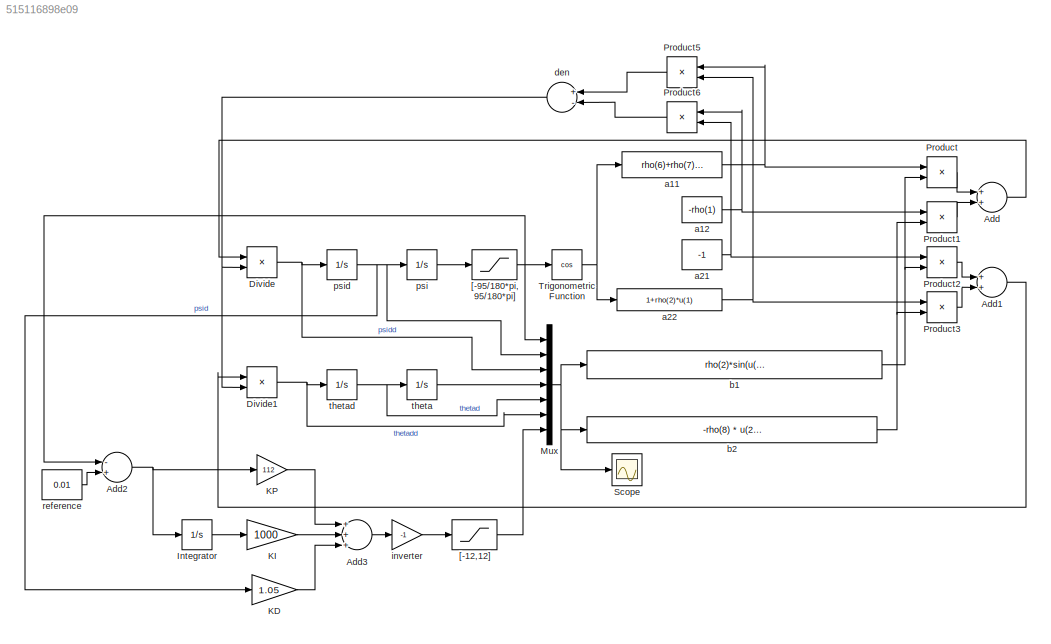
MODEL slx_515116898e09
KIND model
CONFIG AbsTol = auto
CONFIG EnableMultiTasking = off
CONFIG FixedStep = 0.05
CONFIG MaxStep = auto
CONFIG MinStep = auto
CONFIG RelTol = 1e-3
CONFIG SampleTimeConstraint = Unconstrained
CONFIG Solver = FixedStepAuto
CONFIG SolverName = FixedStepAuto
CONFIG StartTime = 0.0
CONFIG StopTime = 0.5
BLOCK [Sum] Add
  InputSameDT = off
  OutDataTypeStr = Inherit: Inherit via internal rule
  Ports = [2, 1]
  SaturateOnIntegerOverflow = off
BLOCK [Sum] Add1
  InputSameDT = off
  OutDataTypeStr = Inherit: Inherit via internal rule
  Ports = [2, 1]
  SaturateOnIntegerOverflow = off
BLOCK [Sum] Add2
  InputSameDT = off
  Inputs = -+
  OutDataTypeStr = Inherit: Inherit via internal rule
  Ports = [2, 1]
  SaturateOnIntegerOverflow = off
BLOCK [Sum] Add3
  InputSameDT = off
  Inputs = +++
  OutDataTypeStr = Inherit: Inherit via internal rule
  Ports = [3, 1]
  SaturateOnIntegerOverflow = off
BLOCK [Product] Divide
  InputSameDT = off
  Inputs = */
  OutDataTypeStr = Inherit: Inherit via internal rule
  Ports = [2, 1]
  RndMeth = Floor
  SaturateOnIntegerOverflow = off
BLOCK [Product] Divide1
  InputSameDT = off
  Inputs = */
  OutDataTypeStr = Inherit: Inherit via internal rule
  Ports = [2, 1]
  RndMeth = Floor
  SaturateOnIntegerOverflow = off
BLOCK [Integrator] Integrator
  Ports = [1, 1]
BLOCK [Gain] KD
  Gain = 1.05
  OutDataTypeStr = Inherit: Inherit via internal rule
  ParamDataTypeStr = Inherit: Inherit via internal rule
  SaturateOnIntegerOverflow = off
BLOCK [Gain] KI
  Gain = 1000
  OutDataTypeStr = Inherit: Inherit via internal rule
  ParamDataTypeStr = Inherit: Inherit via internal rule
  SaturateOnIntegerOverflow = off
BLOCK [Gain] KP
  Gain = 112
  OutDataTypeStr = Inherit: Inherit via internal rule
  ParamDataTypeStr = Inherit: Inherit via internal rule
  SaturateOnIntegerOverflow = off
BLOCK [Mux] Mux
  DisplayOption = bar
  Inputs = 7
  Ports = [7, 1]
BLOCK [Product] Product
  InputSameDT = off
  OutDataTypeStr = Inherit: Inherit via internal rule
  Ports = [2, 1]
  RndMeth = Floor
  SaturateOnIntegerOverflow = off
BLOCK [Product] Product1
  InputSameDT = off
  OutDataTypeStr = Inherit: Inherit via internal rule
  Ports = [2, 1]
  RndMeth = Floor
  SaturateOnIntegerOverflow = off
BLOCK [Product] Product2
  InputSameDT = off
  OutDataTypeStr = Inherit: Inherit via internal rule
  Ports = [2, 1]
  RndMeth = Floor
  SaturateOnIntegerOverflow = off
BLOCK [Product] Product3
  InputSameDT = off
  OutDataTypeStr = Inherit: Inherit via internal rule
  Ports = [2, 1]
  RndMeth = Floor
  SaturateOnIntegerOverflow = off
BLOCK [Product] Product5
  InputSameDT = off
  OutDataTypeStr = Inherit: Inherit via internal rule
  Ports = [2, 1]
  RndMeth = Floor
  SaturateOnIntegerOverflow = off
BLOCK [Product] Product6
  InputSameDT = off
  OutDataTypeStr = Inherit: Inherit via internal rule
  Ports = [2, 1]
  RndMeth = Floor
  SaturateOnIntegerOverflow = off
BLOCK [Scope] Scope
  Floating = off
  NumInputPorts = 1
  Ports = [1]
  ScopeSpecificationString = Simulink.scopes.TimeScopeBlockCfg('CurrentConfiguration', extmgr.ConfigurationSet(extmgr.Configuration('Core','General UI',true),extmgr.Configuration('Core','Source UI',true),extmgr.Configuration('Sources','WiredSimulink',true),extmgr.Configuration('Visuals','Time Domain',true,'SerializedDisplays',{struct('MinYLimReal','-5.39995','MaxYLimReal','8.28785','YLabelReal','','MinYLimMag','0.00000','MaxY...<+1557ch>
BLOCK [Trigonometry] Trigonometric Function
  Operator = cos
  Ports = [1, 1]
BLOCK [Saturate] [-12,12]
  InputPortMap = u0
  LowerLimit = -12
  Ports = [1, 1]
  UpperLimit = 12
BLOCK [Saturate] [-95//180*pi, 95//180*pi]
  InputPortMap = u0
  LowerLimit = -95/180*pi
  Ports = [1, 1]
  UpperLimit = 95/180*pi
BLOCK [Fcn] a11
  Expr = rho(6)+rho(7)*u(1)
BLOCK [Constant] a12
  Value = -rho(1)
BLOCK [Constant] a21
  Value = -1
BLOCK [Fcn] a22
  Expr = 1+rho(2)*u(1)
BLOCK [Fcn] b1
  Expr = rho(2)*sin(u(1))*u(2)^2 - rho(3)*u(5) + rho(4)*u(2) + rho(5)*u(7)
BLOCK [Fcn] b2
  Expr = -rho(8) * u(2) + rho(8) * u(5) +rho(9) * sin(u(1)) - rho(10) * u(7)
BLOCK [Sum] den
  InputSameDT = off
  Inputs = +-
  OutDataTypeStr = Inherit: Inherit via internal rule
  Ports = [2, 1]
  SaturateOnIntegerOverflow = off
BLOCK [Gain] inverter
  Gain = -1
  OutDataTypeStr = Inherit: Inherit via internal rule
  ParamDataTypeStr = Inherit: Inherit via internal rule
  SaturateOnIntegerOverflow = off
BLOCK [Integrator] psi
  Ports = [1, 1]
BLOCK [Integrator] psid
  Ports = [1, 1]
BLOCK [Constant] reference
  Value = 0.01
BLOCK [Integrator] theta
  Ports = [1, 1]
BLOCK [Integrator] thetad
  Ports = [1, 1]
LINE Add1:1 -> Divide1:1
NET Add2:1 -> Integrator:1, KP:1
LINE Add3:1 -> inverter:1
LINE Add:1 -> Divide:1
NET Divide1:1 -> Mux:6, thetad:1
NET Divide:1 -> Mux:3, psid:1
LINE Integrator:1 -> KI:1
LINE KD:1 -> Add3:3
LINE KI:1 -> Add3:2
LINE KP:1 -> Add3:1
NET Mux:1 -> Scope:1, b1:1, b2:1
LINE Product1:1 -> Add:2
LINE Product2:1 -> Add1:1
LINE Product3:1 -> Add1:2
LINE Product5:1 -> den:1
LINE Product6:1 -> den:2
LINE Product:1 -> Add:1
NET Trigonometric Function:1 -> a11:1, a22:1
LINE [-12,12]:1 -> Mux:7
NET [-95//180*pi, 95//180*pi]:1 -> Add2:1, Mux:1, Trigonometric Function:1
NET a11:1 -> Product5:1, Product:1
NET a12:1 -> Product1:1, Product6:1
NET a21:1 -> Product2:1, Product6:2
NET a22:1 -> Product3:1, Product5:2
NET b1:1 -> Product2:2, Product:2
NET b2:1 -> Product1:2, Product3:2
NET den:1 -> Divide1:2, Divide:2
LINE inverter:1 -> [-12,12]:1
LINE psi:1 -> [-95//180*pi, 95//180*pi]:1
NET psid:1 -> KD:1, Mux:2, psi:1
LINE reference:1 -> Add2:2
LINE theta:1 -> Mux:4
NET thetad:1 -> Mux:5, theta:1
note: NET lines group one-source signal fan-out (src -> all destinations, sorted); 1:1 wires keep LINE
